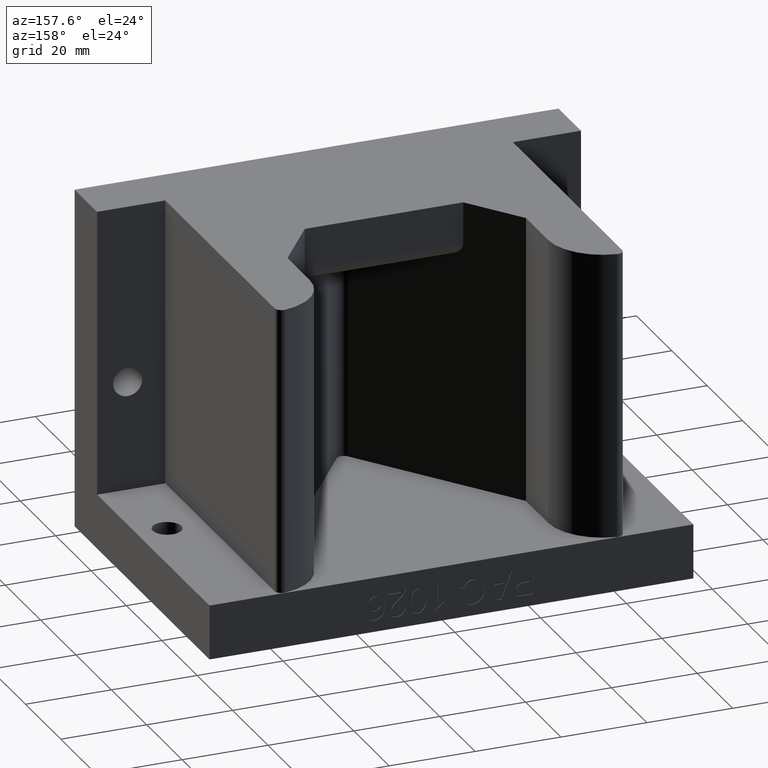
[diagram: clean part render]
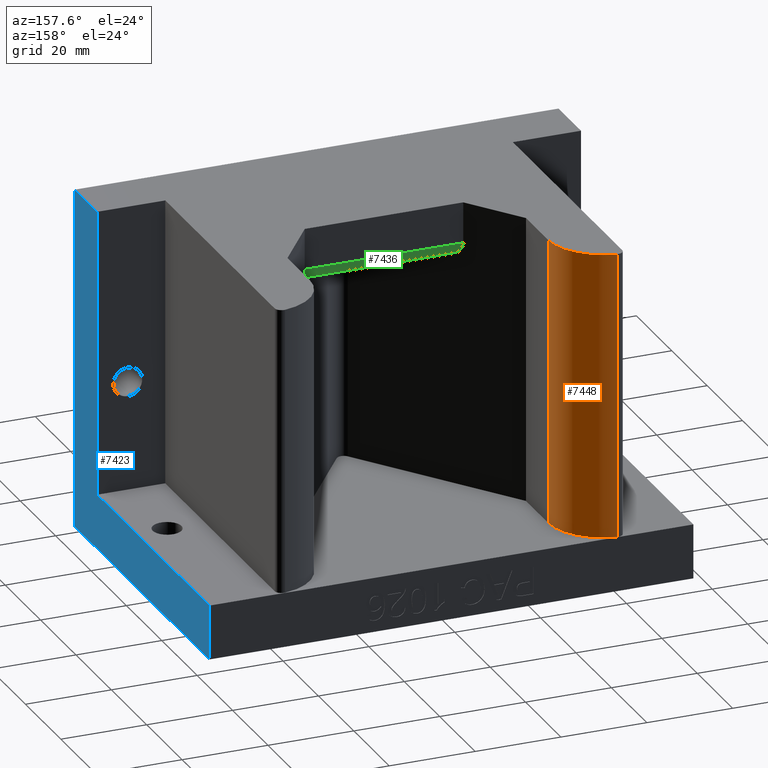
[diagram: same view with three faces highlighted in distinct colors, each labeled with its STEP entity id]
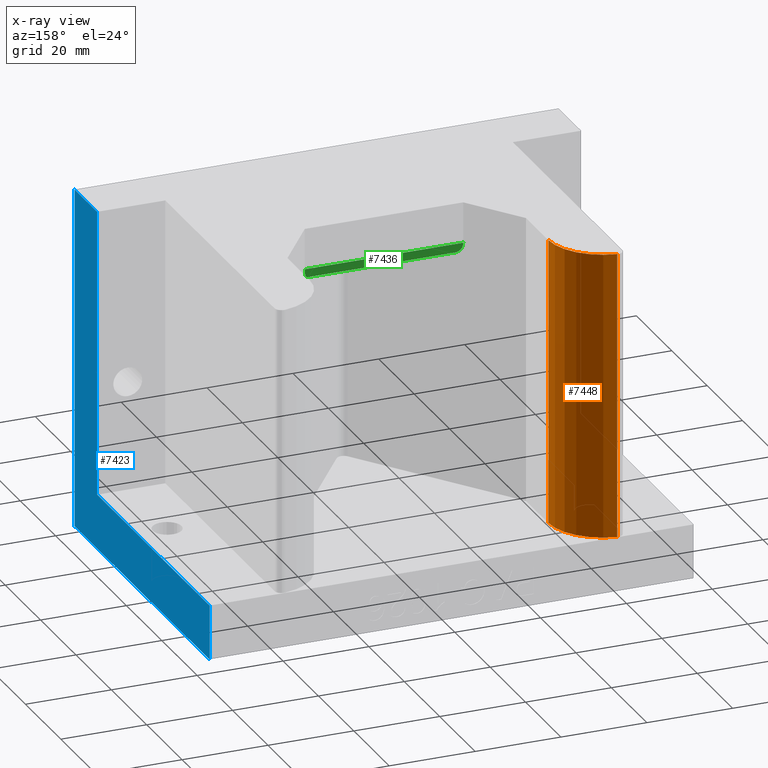
[diagram: x-ray of the same camera — body ghosted, the three highlighted faces saturated]
A machine part, auxiliary view with three faces highlighted in distinct colors.
The next image is the same camera in x-ray (body ghosted, the three faces saturated) — at least one of them is partly hidden behind the body in this view.
Their STEP definitions:

[orange] entity #7448 — the highlighted cylindrical surface (partial cylindrical patch) has radius 12.7 mm, axis along (0, 0, 1).
#293 = EDGE_CURVE ( 'NONE', #8529, #8566, #1414, .T. ) ;
#450 = DIRECTION ( 'NONE',  ( 0.0000000000000000000, 0.0000000000000000000, 1.000000000000000000 ) ) ;
#463 = CARTESIAN_POINT ( 'NONE',  ( -1.522321428571430400, 1.494871659305395200, 0.5000000000000001100 ) ) ;
#1414 = CIRCLE ( 'NONE', #4004, 0.5000000000000000000 ) ;
#1434 = VECTOR ( 'NONE', #450, 39.37007874015748100 ) ;
#1440 = LINE ( 'NONE', #463, #1434 ) ;
#1508 = CIRCLE ( 'NONE', #4017, 0.4999999999999998300 ) ;
#1925 = CARTESIAN_POINT ( 'NONE',  ( -1.093749999999991600, 1.000000000000000200, 0.5000000000000001100 ) ) ;
#1927 = DIRECTION ( 'NONE',  ( 0.0000000000000000000, 0.0000000000000000000, 1.000000000000000000 ) ) ;
#3111 = EDGE_CURVE ( 'NONE', #8529, #8525, #1440, .T. ) ;
#3163 = EDGE_CURVE ( 'NONE', #8525, #8548, #1508, .T. ) ;
#3915 = CARTESIAN_POINT ( 'NONE',  ( -1.522321428571430400, 1.494871659305395000, 3.125000000000000000 ) ) ;
#3917 = CARTESIAN_POINT ( 'NONE',  ( -1.522321428571430400, 1.494871659305395200, 0.5000000000000001100 ) ) ;
#3936 = CARTESIAN_POINT ( 'NONE',  ( -1.093749999999991600, 1.000000000000000200, 3.125000000000000000 ) ) ;
#3954 = CARTESIAN_POINT ( 'NONE',  ( -1.093749999999991600, 1.000000000000000200, 0.5000000000000001100 ) ) ;
#4004 = AXIS2_PLACEMENT_3D ( 'NONE', #8429, #8417, #8416 ) ;
#4017 = AXIS2_PLACEMENT_3D ( 'NONE', #5455, #5435, #5434 ) ;
#4028 = AXIS2_PLACEMENT_3D ( 'NONE', #6419, #6490, #6489 ) ;
#5400 = ORIENTED_EDGE ( 'NONE', *, *, #293, .F. ) ;
#5434 = DIRECTION ( 'NONE',  ( 1.000000000000000000, 0.0000000000000000000, 0.0000000000000000000 ) ) ;
#5435 = DIRECTION ( 'NONE',  ( -0.0000000000000000000, -0.0000000000000000000, -1.000000000000000000 ) ) ;
#5455 = CARTESIAN_POINT ( 'NONE',  ( -1.593749999999991300, 1.000000000000000200, 3.125000000000000000 ) ) ;
#5763 = ORIENTED_EDGE ( 'NONE', *, *, #5825, .F. ) ;
#5764 = ORIENTED_EDGE ( 'NONE', *, *, #3163, .T. ) ;
#5767 = ORIENTED_EDGE ( 'NONE', *, *, #3111, .T. ) ;
#5825 = EDGE_CURVE ( 'NONE', #8566, #8548, #6093, .T. ) ;
#6093 = LINE ( 'NONE', #1925, #6096 ) ;
#6096 = VECTOR ( 'NONE', #1927, 39.37007874015748100 ) ;
#6187 = EDGE_LOOP ( 'NONE', ( #5400, #5767, #5764, #5763 ) ) ;
#6419 = CARTESIAN_POINT ( 'NONE',  ( -1.593749999999991300, 1.000000000000000200, 0.5000000000000001100 ) ) ;
#6489 = DIRECTION ( 'NONE',  ( 1.000000000000000000, 0.0000000000000000000, 0.0000000000000000000 ) ) ;
#6490 = DIRECTION ( 'NONE',  ( 0.0000000000000000000, 0.0000000000000000000, 1.000000000000000000 ) ) ;
#7448 = ADVANCED_FACE ( 'NONE', ( #7572 ), #7573, .T. ) ;
#7572 = FACE_OUTER_BOUND ( 'NONE', #6187, .T. ) ;
#7573 = CYLINDRICAL_SURFACE ( 'NONE', #4028, 0.5000000000000000000 ) ;
#8416 = DIRECTION ( 'NONE',  ( 1.000000000000000000, 1.912293595564984100E-015, 0.0000000000000000000 ) ) ;
#8417 = DIRECTION ( 'NONE',  ( -0.0000000000000000000, -0.0000000000000000000, -1.000000000000000000 ) ) ;
#8429 = CARTESIAN_POINT ( 'NONE',  ( -1.593749999999991300, 1.000000000000000200, 0.5000000000000001100 ) ) ;
#8525 = VERTEX_POINT ( 'NONE', #3915 ) ;
#8529 = VERTEX_POINT ( 'NONE', #3917 ) ;
#8548 = VERTEX_POINT ( 'NONE', #3936 ) ;
#8566 = VERTEX_POINT ( 'NONE', #3954 ) ;

[blue] entity #7423 — the highlighted planar face has unit normal (-1, -0, 0).
#191 = LINE ( 'NONE', #7108, #192 ) ;
#192 = VECTOR ( 'NONE', #7107, 39.37007874015748100 ) ;
#204 = FACE_OUTER_BOUND ( 'NONE', #6547, .T. ) ;
#1191 = VERTEX_POINT ( 'NONE', #8379 ) ;
#1484 = VECTOR ( 'NONE', #5490, 39.37007874015748100 ) ;
#1498 = LINE ( 'NONE', #5497, #1484 ) ;
#1503 = LINE ( 'NONE', #5462, #1504 ) ;
#1504 = VECTOR ( 'NONE', #5461, 39.37007874015748100 ) ;
#1519 = LINE ( 'NONE', #4369, #1521 ) ;
#1521 = VECTOR ( 'NONE', #4368, 39.37007874015748100 ) ;
#1527 = LINE ( 'NONE', #4366, #1528 ) ;
#1528 = VECTOR ( 'NONE', #4364, 39.37007874015748100 ) ;
#3156 = EDGE_CURVE ( 'NONE', #8534, #8573, #1498, .T. ) ;
#3160 = EDGE_CURVE ( 'NONE', #8530, #8573, #1503, .T. ) ;
#3186 = EDGE_CURVE ( 'NONE', #8530, #8524, #1519, .T. ) ;
#3187 = EDGE_CURVE ( 'NONE', #8524, #1191, #1527, .T. ) ;
#3191 = EDGE_CURVE ( 'NONE', #8534, #8583, #5776, .T. ) ;
#3899 = CARTESIAN_POINT ( 'NONE',  ( 2.218749999999999600, -1.500000000000000200, 0.0000000000000000000 ) ) ;
#3918 = CARTESIAN_POINT ( 'NONE',  ( 2.218749999999999600, -1.500000000000000200, 3.125000000000000000 ) ) ;
#3922 = CARTESIAN_POINT ( 'NONE',  ( 2.218749999999999600, -1.000000000000000000, 0.5000000000000001100 ) ) ;
#3961 = CARTESIAN_POINT ( 'NONE',  ( 2.218749999999999600, -1.000000000000000000, 3.125000000000000000 ) ) ;
#3971 = CARTESIAN_POINT ( 'NONE',  ( 2.218749999999999600, 1.500000000000000200, 0.5000000000000001100 ) ) ;
#4037 = AXIS2_PLACEMENT_3D ( 'NONE', #6629, #6623, #6622 ) ;
#4334 = DIRECTION ( 'NONE',  ( -1.092739197465705300E-016, 1.000000000000000000, 0.0000000000000000000 ) ) ;
#4335 = CARTESIAN_POINT ( 'NONE',  ( 2.218749999999999600, -1.000000000000000000, 0.5000000000000001100 ) ) ;
#4364 = DIRECTION ( 'NONE',  ( -9.106159978880878600E-017, 1.000000000000000000, -0.0000000000000000000 ) ) ;
#4366 = CARTESIAN_POINT ( 'NONE',  ( 2.218749999999999600, 1.500000000000000200, 0.0000000000000000000 ) ) ;
#4368 = DIRECTION ( 'NONE',  ( -0.0000000000000000000, -0.0000000000000000000, -1.000000000000000000 ) ) ;
#4369 = CARTESIAN_POINT ( 'NONE',  ( 2.218749999999999600, -1.500000000000000200, 3.125000000000000000 ) ) ;
#4513 = ORIENTED_EDGE ( 'NONE', *, *, #3191, .F. ) ;
#4518 = ORIENTED_EDGE ( 'NONE', *, *, #6915, .F. ) ;
#4558 = ORIENTED_EDGE ( 'NONE', *, *, #3160, .F. ) ;
#4559 = ORIENTED_EDGE ( 'NONE', *, *, #3156, .T. ) ;
#5461 = DIRECTION ( 'NONE',  ( -9.106159978880878600E-017, 1.000000000000000000, -0.0000000000000000000 ) ) ;
#5462 = CARTESIAN_POINT ( 'NONE',  ( 2.218749999999999600, 1.500000000000000200, 3.125000000000000000 ) ) ;
#5490 = DIRECTION ( 'NONE',  ( -0.0000000000000000000, -0.0000000000000000000, 1.000000000000000000 ) ) ;
#5497 = CARTESIAN_POINT ( 'NONE',  ( 2.218749999999999600, -1.000000000000000000, 0.5000000000000001100 ) ) ;
#5613 = ORIENTED_EDGE ( 'NONE', *, *, #3187, .T. ) ;
#5614 = ORIENTED_EDGE ( 'NONE', *, *, #3186, .T. ) ;
#5776 = LINE ( 'NONE', #4335, #6012 ) ;
#6012 = VECTOR ( 'NONE', #4334, 39.37007874015748100 ) ;
#6547 = EDGE_LOOP ( 'NONE', ( #4513, #4559, #4558, #5614, #5613, #4518 ) ) ;
#6622 = DIRECTION ( 'NONE',  ( 9.106159978880877400E-017, -1.000000000000000000, 0.0000000000000000000 ) ) ;
#6623 = DIRECTION ( 'NONE',  ( -1.000000000000000000, -9.106159978880877400E-017, 0.0000000000000000000 ) ) ;
#6628 = PLANE ( 'NONE',  #4037 ) ;
#6629 = CARTESIAN_POINT ( 'NONE',  ( 2.218749999999999600, 1.500000000000000200, 3.125000000000000000 ) ) ;
#6915 = EDGE_CURVE ( 'NONE', #8583, #1191, #191, .T. ) ;
#7107 = DIRECTION ( 'NONE',  ( -0.0000000000000000000, -0.0000000000000000000, -1.000000000000000000 ) ) ;
#7108 = CARTESIAN_POINT ( 'NONE',  ( 2.218749999999999600, 1.500000000000000200, 3.125000000000000000 ) ) ;
#7423 = ADVANCED_FACE ( 'NONE', ( #204 ), #6628, .F. ) ;
#8379 = CARTESIAN_POINT ( 'NONE',  ( 2.218749999999999600, 1.500000000000000200, 0.0000000000000000000 ) ) ;
#8524 = VERTEX_POINT ( 'NONE', #3899 ) ;
#8530 = VERTEX_POINT ( 'NONE', #3918 ) ;
#8534 = VERTEX_POINT ( 'NONE', #3922 ) ;
#8573 = VERTEX_POINT ( 'NONE', #3961 ) ;
#8583 = VERTEX_POINT ( 'NONE', #3971 ) ;

[green] entity #7436 — the highlighted cylindrical surface (edge-blend (fillet) strip) has radius 3.175 mm, axis along (-1, -0, 0).
#411 = CARTESIAN_POINT ( 'NONE',  ( 0.7265425280053632300, 2.248215964962356500E-017, 2.749999999999998700 ) ) ;
#412 = CARTESIAN_POINT ( 'NONE',  ( 0.7265425280053629000, -5.585069797693977400E-016, 2.676776695296636100 ) ) ;
#413 = CARTESIAN_POINT ( 'NONE',  ( 0.6889245569127810900, -0.05177669529663742700, 2.625000000000000400 ) ) ;
#422 = CARTESIAN_POINT ( 'NONE',  ( 0.6357247120046928300, -0.1250000000000001700, 2.625000000000000000 ) ) ;
#468 = DIRECTION ( 'NONE',  ( 1.000000000000000000, 1.224606353822377300E-016, -0.0000000000000000000 ) ) ;
#470 = CARTESIAN_POINT ( 'NONE',  ( 1.093750000000008700, -0.1249999999999999000, 2.625000000000000000 ) ) ;
#526 = EDGE_LOOP ( 'NONE', ( #7795, #3393, #3355, #3354 ) ) ;
#527 = EDGE_CURVE ( 'NONE', #8565, #8544, #7413, .T. ) ;
#1422 = VECTOR ( 'NONE', #468, 39.37007874015748100 ) ;
#1424 = LINE ( 'NONE', #470, #1422 ) ;
#2028 = DIRECTION ( 'NONE',  ( -1.000000000000000000, -1.224606353822377300E-016, 0.0000000000000000000 ) ) ;
#2032 = CARTESIAN_POINT ( 'NONE',  ( 0.7265425280053632300, 2.248215964962356500E-017, 2.750000000000000000 ) ) ;
#3105 = EDGE_CURVE ( 'NONE', #8544, #8538, #1424, .T. ) ;
#3124 = EDGE_CURVE ( 'NONE', #8538, #8563, #7414, .T. ) ;
#3354 = ORIENTED_EDGE ( 'NONE', *, *, #6546, .F. ) ;
#3355 = ORIENTED_EDGE ( 'NONE', *, *, #527, .F. ) ;
#3393 = ORIENTED_EDGE ( 'NONE', *, *, #3105, .F. ) ;
#3926 = CARTESIAN_POINT ( 'NONE',  ( 0.6357247120046928300, -0.1250000000000001700, 2.625000000000000000 ) ) ;
#3932 = CARTESIAN_POINT ( 'NONE',  ( -0.6357247120046830600, -0.1249999999999999000, 2.625000000000000000 ) ) ;
#3951 = CARTESIAN_POINT ( 'NONE',  ( 0.7265425280053632300, 2.248215964962356500E-017, 2.749999999999998700 ) ) ;
#3953 = CARTESIAN_POINT ( 'NONE',  ( -0.7265425280053518000, -1.554635595738830900E-016, 2.749999999999998700 ) ) ;
#4050 = AXIS2_PLACEMENT_3D ( 'NONE', #6295, #6279, #6285 ) ;
#6103 = LINE ( 'NONE', #2032, #6104 ) ;
#6104 = VECTOR ( 'NONE', #2028, 39.37007874015748100 ) ;
#6279 = DIRECTION ( 'NONE',  ( -1.000000000000000000, -1.224606353822377300E-016, 0.0000000000000000000 ) ) ;
#6285 = DIRECTION ( 'NONE',  ( 0.0000000000000000000, -1.000000000000000000, 0.0000000000000000000 ) ) ;
#6295 = CARTESIAN_POINT ( 'NONE',  ( 0.7265425280053632300, -0.1249999999999999600, 2.750000000000000000 ) ) ;
#6546 = EDGE_CURVE ( 'NONE', #8563, #8565, #6103, .T. ) ;
#7413 =( BOUNDED_CURVE ( )  B_SPLINE_CURVE ( 3, ( #8428, #8414, #8413, #8412 ),
 .UNSPECIFIED., .F., .F. ) 
 B_SPLINE_CURVE_WITH_KNOTS ( ( 4, 4 ),
 ( 8.741913579725642300E-015, 1.570796326794894300 ),
 .UNSPECIFIED. ) 
 CURVE ( )  GEOMETRIC_REPRESENTATION_ITEM ( )  RATIONAL_B_SPLINE_CURVE ( ( 1.000000000000000000, 0.8047378541243676000, 0.8047378541243676000, 1.000000000000000000 ) ) 
 REPRESENTATION_ITEM ( '' )  );
#7414 =( BOUNDED_CURVE ( )  B_SPLINE_CURVE ( 3, ( #422, #413, #412, #411 ),
 .UNSPECIFIED., .F., .T. ) 
 B_SPLINE_CURVE_WITH_KNOTS ( ( 4, 4 ),
 ( 1.570796326794895200, 3.141592653589784700 ),
 .UNSPECIFIED. ) 
 CURVE ( )  GEOMETRIC_REPRESENTATION_ITEM ( )  RATIONAL_B_SPLINE_CURVE ( ( 1.000000000000000000, 0.8047378541243667100, 0.8047378541243667100, 1.000000000000000000 ) ) 
 REPRESENTATION_ITEM ( '' )  );
#7436 = ADVANCED_FACE ( 'NONE', ( #7552 ), #7554, .T. ) ;
#7552 = FACE_OUTER_BOUND ( 'NONE', #526, .T. ) ;
#7554 = CYLINDRICAL_SURFACE ( 'NONE', #4050, 0.1250000000000000000 ) ;
#7795 = ORIENTED_EDGE ( 'NONE', *, *, #3124, .F. ) ;
#8412 = CARTESIAN_POINT ( 'NONE',  ( -0.6357247120046830600, -0.1249999999999999000, 2.625000000000000000 ) ) ;
#8413 = CARTESIAN_POINT ( 'NONE',  ( -0.6889245569127703300, -0.05177669529663735800, 2.625000000000000000 ) ) ;
#8414 = CARTESIAN_POINT ( 'NONE',  ( -0.7265425280053516800, -7.767042014219261300E-016, 2.676776695296636500 ) ) ;
#8428 = CARTESIAN_POINT ( 'NONE',  ( -0.7265425280053518000, -1.554635595738830900E-016, 2.749999999999998700 ) ) ;
#8538 = VERTEX_POINT ( 'NONE', #3926 ) ;
#8544 = VERTEX_POINT ( 'NONE', #3932 ) ;
#8563 = VERTEX_POINT ( 'NONE', #3951 ) ;
#8565 = VERTEX_POINT ( 'NONE', #3953 ) ;